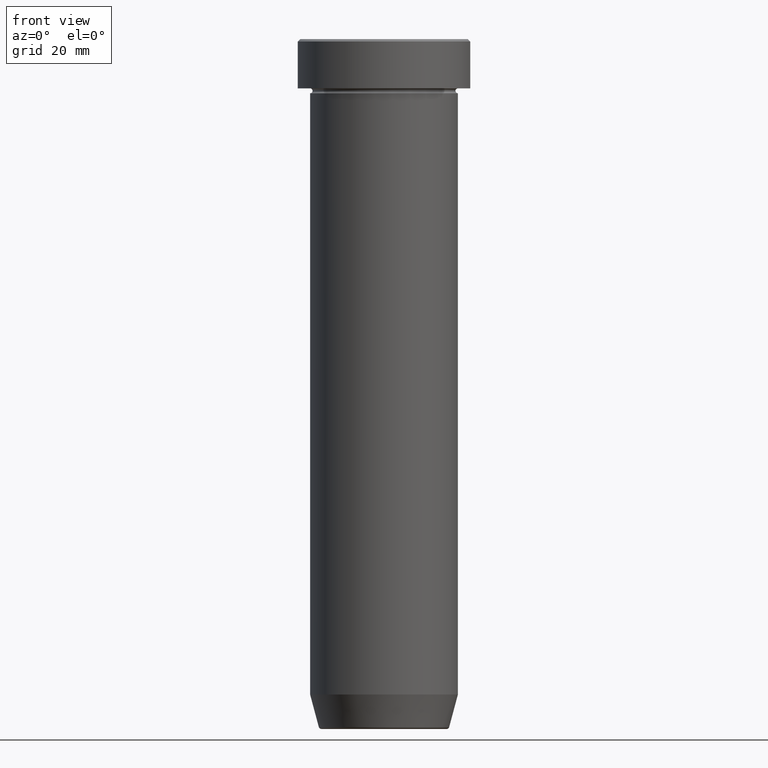
[diagram: clean part render]
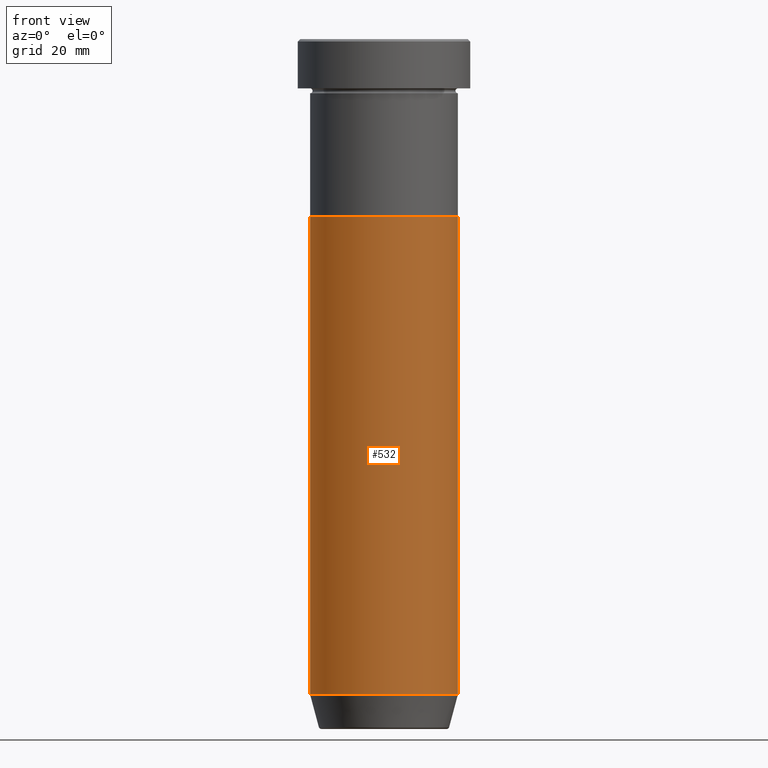
[diagram: same view with one face highlighted and labeled with its STEP entity id]
A machine part, front view. The second image highlights one B-rep face of the part: STEP entity #532.
In plain terms, the highlighted cylindrical surface (partial cylindrical patch) has radius 15 mm, axis along (-0, -0, 1).
Its self-contained STEP definition (entity closure, byte-faithful):
#1 = ORIENTED_EDGE ( 'NONE', *, *, #162, .F. ) ;
#28 = DIRECTION ( 'NONE',  ( -0.000000000000000000, -0.000000000000000000, 1.000000000000000000 ) ) ;
#32 = EDGE_CURVE ( 'NONE', #478, #254, #537, .T. ) ;
#45 = CARTESIAN_POINT ( 'NONE',  ( 0.000000000000000000, 0.000000000000000000, -36.00000000000000000 ) ) ;
#59 = EDGE_LOOP ( 'NONE', ( #1, #80, #549, #98 ) ) ;
#80 = ORIENTED_EDGE ( 'NONE', *, *, #321, .T. ) ;
#98 = ORIENTED_EDGE ( 'NONE', *, *, #177, .F. ) ;
#130 = VERTEX_POINT ( 'NONE', #552 ) ;
#137 = DIRECTION ( 'NONE',  ( -0.000000000000000000, -0.000000000000000000, 1.000000000000000000 ) ) ;
#145 = CIRCLE ( 'NONE', #425, 15.00000000000000000 ) ;
#154 = AXIS2_PLACEMENT_3D ( 'NONE', #347, #137, #285 ) ;
#162 = EDGE_CURVE ( 'NONE', #475, #130, #169, .T. ) ;
#169 = LINE ( 'NONE', #273, #414 ) ;
#177 = EDGE_CURVE ( 'NONE', #130, #254, #145, .T. ) ;
#247 = DIRECTION ( 'NONE',  ( 1.000000000000000000, 0.000000000000000000, 0.000000000000000000 ) ) ;
#248 = CARTESIAN_POINT ( 'NONE',  ( 15.00000000000000000, 0.000000000000000000, -36.00000000000000000 ) ) ;
#254 = VERTEX_POINT ( 'NONE', #248 ) ;
#259 = VECTOR ( 'NONE', #28, 1000.000000000000000 ) ;
#264 = DIRECTION ( 'NONE',  ( 1.000000000000000000, 0.000000000000000000, 0.000000000000000000 ) ) ;
#273 = CARTESIAN_POINT ( 'NONE',  ( -15.00000000000000000, 1.836970198721029589E-15, 0.000000000000000000 ) ) ;
#277 = CYLINDRICAL_SURFACE ( 'NONE', #358, 15.00000000000000000 ) ;
#285 = DIRECTION ( 'NONE',  ( 1.000000000000000000, 0.000000000000000000, 0.000000000000000000 ) ) ;
#321 = EDGE_CURVE ( 'NONE', #475, #478, #480, .T. ) ;
#342 = FACE_OUTER_BOUND ( 'NONE', #59, .T. ) ;
#347 = CARTESIAN_POINT ( 'NONE',  ( 0.000000000000000000, 0.000000000000000000, -132.9999999999999432 ) ) ;
#358 = AXIS2_PLACEMENT_3D ( 'NONE', #468, #479, #247 ) ;
#377 = DIRECTION ( 'NONE',  ( -0.000000000000000000, -0.000000000000000000, 1.000000000000000000 ) ) ;
#380 = CARTESIAN_POINT ( 'NONE',  ( -15.00000000000000355, 1.836970198721029983E-15, -132.9999999999999432 ) ) ;
#410 = DIRECTION ( 'NONE',  ( -0.000000000000000000, -0.000000000000000000, 1.000000000000000000 ) ) ;
#414 = VECTOR ( 'NONE', #377, 1000.000000000000000 ) ;
#425 = AXIS2_PLACEMENT_3D ( 'NONE', #45, #410, #264 ) ;
#433 = CARTESIAN_POINT ( 'NONE',  ( 15.00000000000000178, 0.000000000000000000, -132.9999999999999432 ) ) ;
#468 = CARTESIAN_POINT ( 'NONE',  ( 0.000000000000000000, 0.000000000000000000, 0.000000000000000000 ) ) ;
#475 = VERTEX_POINT ( 'NONE', #380 ) ;
#478 = VERTEX_POINT ( 'NONE', #433 ) ;
#479 = DIRECTION ( 'NONE',  ( -0.000000000000000000, -0.000000000000000000, 1.000000000000000000 ) ) ;
#480 = CIRCLE ( 'NONE', #154, 15.00000000000000178 ) ;
#493 = CARTESIAN_POINT ( 'NONE',  ( 15.00000000000000000, 0.000000000000000000, 0.000000000000000000 ) ) ;
#532 = ADVANCED_FACE ( 'NONE', ( #342 ), #277, .T. ) ;
#537 = LINE ( 'NONE', #493, #259 ) ;
#549 = ORIENTED_EDGE ( 'NONE', *, *, #32, .T. ) ;
#552 = CARTESIAN_POINT ( 'NONE',  ( -15.00000000000000000, 1.836970198721029589E-15, -36.00000000000000000 ) ) ;